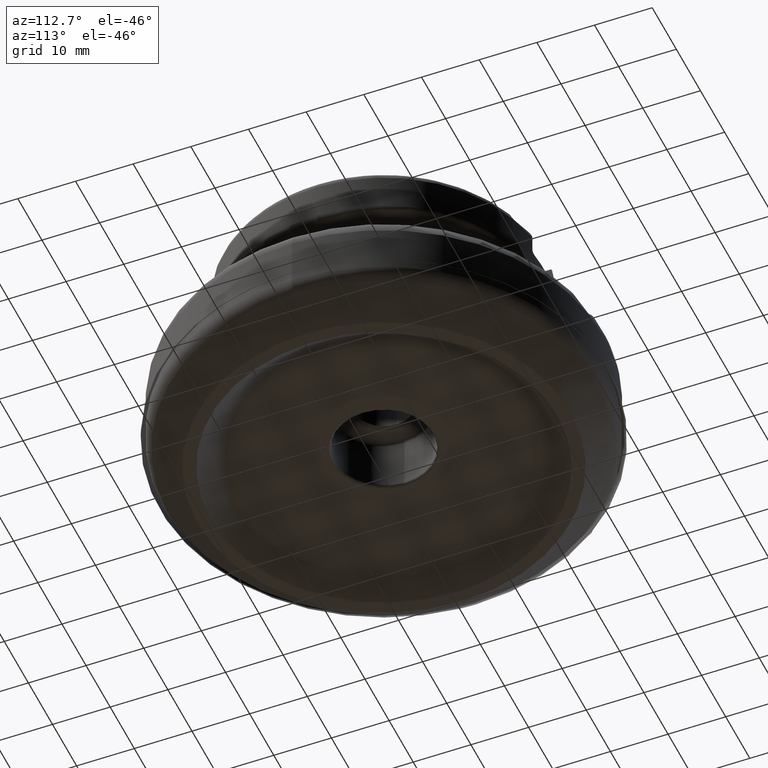
[diagram: clean part render]
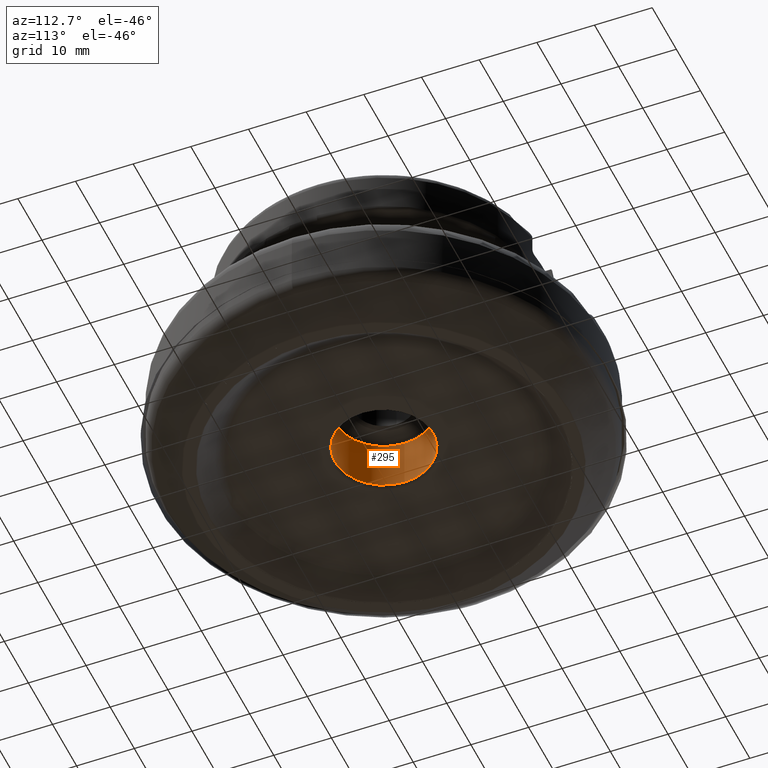
[diagram: same view with one face highlighted and labeled with its STEP entity id]
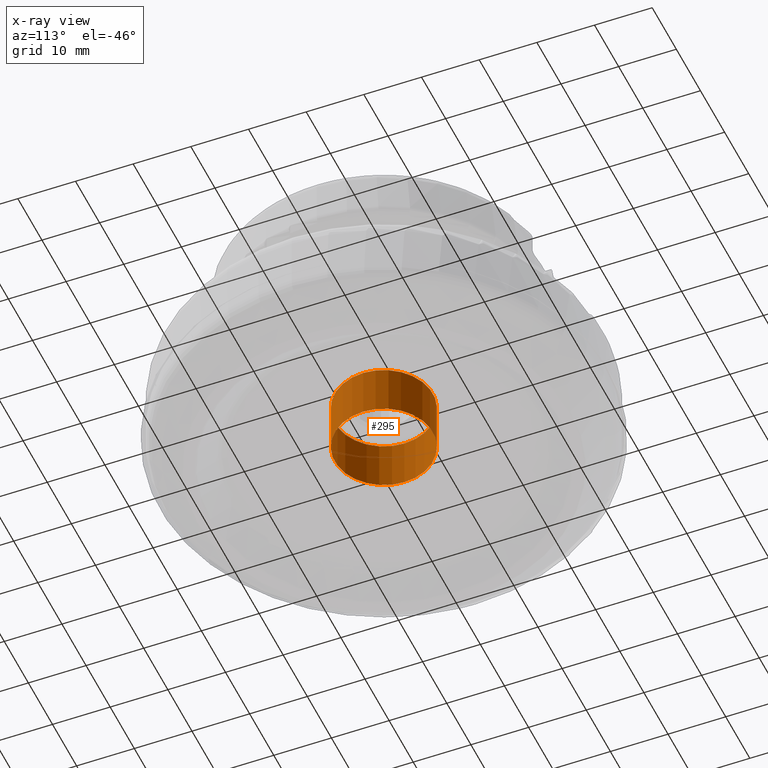
[diagram: x-ray of the same camera — body ghosted, the highlighted face saturated]
A machine part, auxiliary view. The second image highlights one B-rep face of the part: STEP entity #295.
The next image is the same camera in x-ray: the body ghosted, the highlighted face saturated — about 1% of this face is hidden behind the body in this view.
In plain terms, the highlighted cylindrical surface (bore or boss wall) has radius 8.5 mm, axis along (-0, 0, -1).
Its self-contained STEP definition (entity closure, byte-faithful):
#203=CYLINDRICAL_SURFACE('',#1118,8.5);
#295=ADVANCED_FACE('',(#377,#378),#203,.F.);
#377=FACE_BOUND('',#475,.T.);
#378=FACE_BOUND('',#476,.T.);
#475=EDGE_LOOP('',(#635));
#476=EDGE_LOOP('',(#636));
#635=ORIENTED_EDGE('',*,*,#921,.T.);
#636=ORIENTED_EDGE('',*,*,#922,.T.);
#828=VERTEX_POINT('',#1956);
#829=VERTEX_POINT('',#1958);
#921=EDGE_CURVE('',#828,#828,#990,.T.);
#922=EDGE_CURVE('',#829,#829,#991,.T.);
#990=CIRCLE('',#1116,8.5);
#991=CIRCLE('',#1117,8.5);
#1116=AXIS2_PLACEMENT_3D('',#1955,#1281,#1282);
#1117=AXIS2_PLACEMENT_3D('',#1957,#1283,#1284);
#1118=AXIS2_PLACEMENT_3D('',#1959,#1285,#1286);
#1281=DIRECTION('',(-1.17145536458252E-15,0.,-1.));
#1282=DIRECTION('',(-1.,0.,1.1224681315144E-15));
#1283=DIRECTION('',(1.17145536458252E-15,0.,1.));
#1284=DIRECTION('',(-1.,0.,1.22451068892481E-15));
#1285=DIRECTION('',(-1.17145536458252E-15,0.,-1.));
#1286=DIRECTION('',(-1.,0.,1.17145536458252E-15));
#1955=CARTESIAN_POINT('',(6.44916860174499E-15,0.,5.5052619132811));
#1956=CARTESIAN_POINT('',(-8.49999999999999,0.,5.50526191328111));
#1957=CARTESIAN_POINT('',(1.68751213465295E-14,0.,14.4052619132811));
#1958=CARTESIAN_POINT('',(-8.49999999999998,0.,14.4052619132811));
#1959=CARTESIAN_POINT('',(0.,0.,0.));